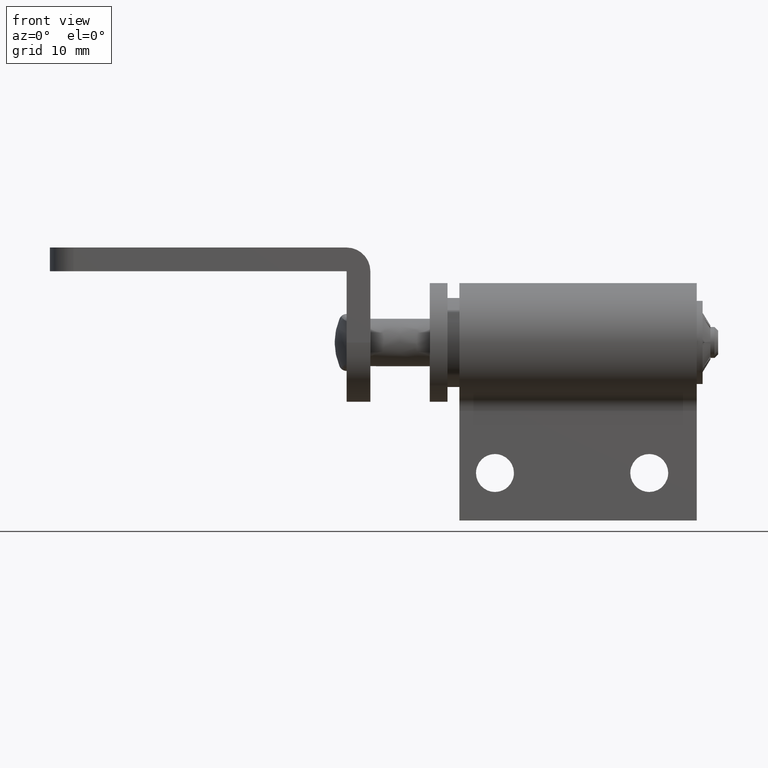
[diagram: clean part render]
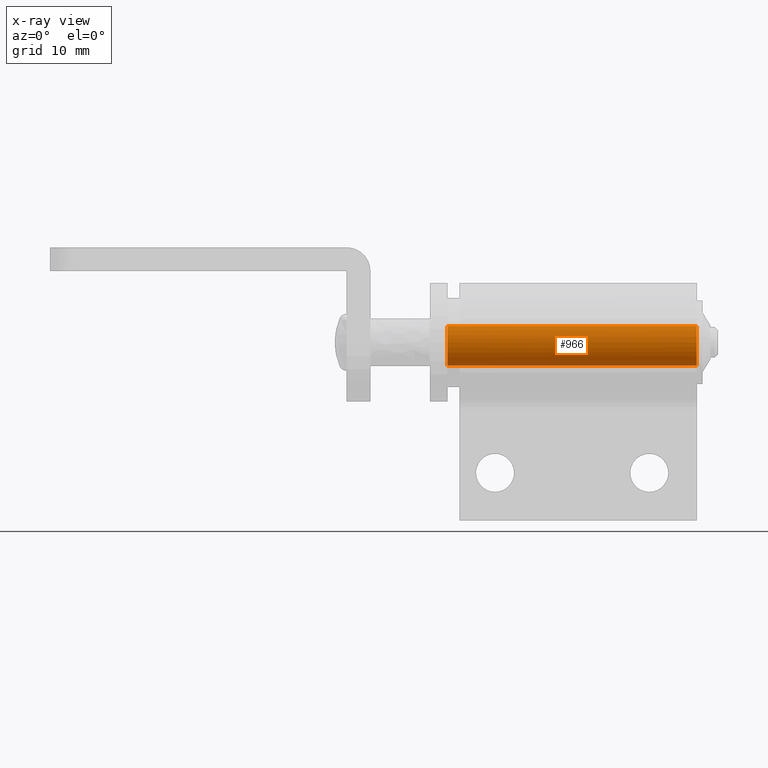
[diagram: x-ray — body ghosted, one internal face saturated and labeled with its STEP entity id]
A machine part, front view, then the same camera in x-ray: the body is ghosted and one INTERNAL B-rep face — a face not visible from any outside direction — is saturated and labeled: STEP entity #966.
In plain terms, the highlighted face is a freeform B-spline surface patch.
Its self-contained STEP definition (entity closure, byte-faithful):
#806=CARTESIAN_POINT('',(27.499999999999609,-1.366773203733618,1.390838492547572));
#807=VERTEX_POINT('',#806);
#819=CARTESIAN_POINT('',(27.500000000000000,-1.949999999999867,0.000000720926394));
#820=VERTEX_POINT('',#819);
#821=CARTESIAN_POINT('',(27.500000000000000,-1.949999999999867,0.000000720926394));
#822=CARTESIAN_POINT('',(27.499999999999979,-1.950047994614657,0.169378875432823));
#823=CARTESIAN_POINT('',(27.499999999999812,-1.914030310972787,0.443563347467407));
#824=CARTESIAN_POINT('',(27.499999999999901,-1.740774460514378,0.931609000888460));
#825=CARTESIAN_POINT('',(27.499999999999570,-1.539540575149388,1.221377174965465));
#826=CARTESIAN_POINT('',(27.499999999999609,-1.366773203733618,1.390838492547572));
#827=B_SPLINE_CURVE_WITH_KNOTS('',3,(#821,#822,#823,#824,#825,#826),.UNSPECIFIED.,.F.,.U.,(4,1,1,4),(0.000000018511957,0.508121024925905,0.822664070868478,1.548552646110352),.UNSPECIFIED.);
#828=EDGE_CURVE('',#820,#807,#827,.T.);
#830=CARTESIAN_POINT('',(27.500000000000000,0.0,-1.950000000000000));
#831=VERTEX_POINT('',#830);
#832=CARTESIAN_POINT('',(27.500000000000000,0.0,-1.950000000000000));
#833=CARTESIAN_POINT('',(27.500000000000000,-0.119647126584204,-1.950010584561388));
#834=CARTESIAN_POINT('',(27.499999999999972,-0.374901890827367,-1.926442330407408));
#835=CARTESIAN_POINT('',(27.500000000000000,-0.690146637806017,-1.832927827841451));
#836=CARTESIAN_POINT('',(27.499999999999989,-0.999790541831232,-1.684139218013389));
#837=CARTESIAN_POINT('',(27.500000000000011,-1.296143919473710,-1.478164466958066));
#838=CARTESIAN_POINT('',(27.500000000000011,-1.578485222945910,-1.170452195569402));
#839=CARTESIAN_POINT('',(27.499999999999890,-1.796425074408128,-0.796503251311058));
#840=CARTESIAN_POINT('',(27.500000000000352,-1.922518959187662,-0.406813067960667));
#841=CARTESIAN_POINT('',(27.499999999999691,-1.950008328879660,-0.127624436273055));
#842=CARTESIAN_POINT('',(27.500000000000000,-1.949999999999867,0.000000720926394));
#843=B_SPLINE_CURVE_WITH_KNOTS('',3,(#832,#833,#834,#835,#836,#837,#838,#839,#840,#841,#842),.UNSPECIFIED.,.F.,.U.,(4,1,1,1,1,1,1,1,4),(0.000000068411732,0.358943663866571,0.765768301621269,0.981143381336795,1.387972693016732,1.842616439815194,2.225511751286716,2.680192115271657,3.063072462941079),.UNSPECIFIED.);
#844=EDGE_CURVE('',#831,#820,#843,.T.);
#846=CARTESIAN_POINT('',(27.499999999999609,1.366773203733612,-1.390838492547567));
#847=VERTEX_POINT('',#846);
#848=CARTESIAN_POINT('',(27.499999999999609,1.366773203733612,-1.390838492547567));
#849=CARTESIAN_POINT('',(27.499999999999648,1.237408314364700,-1.518051135449795));
#850=CARTESIAN_POINT('',(27.499999999999769,1.006869633167816,-1.688533801159638));
#851=CARTESIAN_POINT('',(27.499999999999769,0.544185424199011,-1.894425751406475));
#852=CARTESIAN_POINT('',(27.500000000000060,0.220897345878220,-1.950169475384064));
#853=CARTESIAN_POINT('',(27.500000000000000,0.0,-1.950000000000000));
#854=B_SPLINE_CURVE_WITH_KNOTS('',3,(#848,#849,#850,#851,#852,#853),.UNSPECIFIED.,.F.,.U.,(4,1,1,4),(0.000000016567315,0.544281440796522,0.851910658614900,1.514518838185107),.UNSPECIFIED.);
#855=EDGE_CURVE('',#847,#831,#854,.T.);
#893=CARTESIAN_POINT('',(28.024999999999999,1.366773065384709,-1.390838375850654));
#894=CARTESIAN_POINT('',(28.025000000000006,-0.024065310465945,-2.757611441235363));
#895=CARTESIAN_POINT('',(28.024999999999999,-1.390838375850654,-1.366773065384709));
#896=CARTESIAN_POINT('',(28.025000000000006,-2.757611441235363,0.024065310465945));
#897=CARTESIAN_POINT('',(28.024999999999999,-1.366773065384709,1.390838375850654));
#898=CARTESIAN_POINT('',(5.961874999999999,1.366773065384709,-1.390838375850654));
#899=CARTESIAN_POINT('',(5.961874999999998,-0.024065310465945,-2.757611441235363));
#900=CARTESIAN_POINT('',(5.961874999999999,-1.390838375850654,-1.366773065384709));
#901=CARTESIAN_POINT('',(5.961874999999998,-2.757611441235363,0.024065310465945));
#902=CARTESIAN_POINT('',(5.961874999999999,-1.366773065384709,1.390838375850654));
#910=(BOUNDED_SURFACE()B_SPLINE_SURFACE(2,1,((#893,#898),(#894,#899),(#895,#900),(#896,#901),(#897,#902)),.UNSPECIFIED.,.F.,.F.,.U.)B_SPLINE_SURFACE_WITH_KNOTS((3,2,3),(2,2),(0.0,3.230865786510141,6.461731573020281),(0.0,22.063125000000010),.UNSPECIFIED.)GEOMETRIC_REPRESENTATION_ITEM()RATIONAL_B_SPLINE_SURFACE(((1.0,1.0),(0.707106781186548,0.707106781186548),(1.0,1.0),(0.707106781186548,0.707106781186548),(1.0,1.0)))REPRESENTATION_ITEM('')SURFACE());
#911=ORIENTED_EDGE('',*,*,#855,.T.);
#912=ORIENTED_EDGE('',*,*,#844,.T.);
#913=ORIENTED_EDGE('',*,*,#828,.T.);
#914=CARTESIAN_POINT('',(6.500000000000001,-1.366772951249389,1.390838235359075));
#915=VERTEX_POINT('',#914);
#916=CARTESIAN_POINT('',(27.499999999999609,-1.366773203733618,1.390838492547572));
#917=CARTESIAN_POINT('',(6.500000000000001,-1.366772951249389,1.390838235359075));
#918=QUASI_UNIFORM_CURVE('',1,(#916,#917),.UNSPECIFIED.,.F.,.U.);
#919=EDGE_CURVE('',#807,#915,#918,.T.);
#920=ORIENTED_EDGE('',*,*,#919,.T.);
#921=CARTESIAN_POINT('',(6.500000000000000,-1.949999999999867,-9.947600E-014));
#922=VERTEX_POINT('',#921);
#923=CARTESIAN_POINT('',(6.500000000000001,-1.366772951249389,1.390838235359075));
#924=CARTESIAN_POINT('',(6.500000000000033,-1.527986045313632,1.232646017051011));
#925=CARTESIAN_POINT('',(6.499999999999963,-1.708632308602377,0.979397046472969));
#926=CARTESIAN_POINT('',(6.500000000000037,-1.902702568259152,0.499984062955947));
#927=CARTESIAN_POINT('',(6.500000000000004,-1.950122815148748,0.209720513830726));
#928=CARTESIAN_POINT('',(6.500000000000000,-1.949999999999867,-9.947600E-014));
#929=B_SPLINE_CURVE_WITH_KNOTS('',3,(#923,#924,#925,#926,#927,#928),.UNSPECIFIED.,.F.,.U.,(4,1,1,4),(0.000000018511980,0.677498675301140,0.919446579712146,1.548553223763860),.UNSPECIFIED.);
#930=EDGE_CURVE('',#915,#922,#929,.T.);
#931=ORIENTED_EDGE('',*,*,#930,.T.);
#932=CARTESIAN_POINT('',(6.500000000000000,0.0,-1.950000000000000));
#933=VERTEX_POINT('',#932);
#934=CARTESIAN_POINT('',(6.500000000000000,-1.949999999999867,-9.947600E-014));
#935=CARTESIAN_POINT('',(6.500000000000001,-1.950010698492792,-0.119647562924277));
#936=CARTESIAN_POINT('',(6.500000000000025,-1.926441280377720,-0.374899358385481));
#937=CARTESIAN_POINT('',(6.499999999999949,-1.816968140854073,-0.743976512641086));
#938=CARTESIAN_POINT('',(6.500000000000057,-1.624270216081290,-1.104491355179282));
#939=CARTESIAN_POINT('',(6.500000000000000,-1.376248228726845,-1.399238198024023));
#940=CARTESIAN_POINT('',(6.499999999999974,-1.063714179320260,-1.649388239448449));
#941=CARTESIAN_POINT('',(6.500000000000010,-0.764514185769376,-1.804613268404231));
#942=CARTESIAN_POINT('',(6.499999999999991,-0.398814783672400,-1.920465878756980));
#943=CARTESIAN_POINT('',(6.500000000000086,-0.159535707933579,-1.950036683635150));
#944=CARTESIAN_POINT('',(6.500000000000000,0.0,-1.950000000000000));
#945=B_SPLINE_CURVE_WITH_KNOTS('',3,(#934,#935,#936,#937,#938,#939,#940,#941,#942,#943,#944),.UNSPECIFIED.,.F.,.U.,(4,1,1,1,1,1,1,1,4),(0.000000068535145,0.358943616314497,0.765768200147896,1.148658708540306,1.579386006637402,1.914416363729315,2.345165294625753,2.584474675373538,3.063072056612399),.UNSPECIFIED.);
#946=EDGE_CURVE('',#922,#933,#945,.T.);
#947=ORIENTED_EDGE('',*,*,#946,.T.);
#948=CARTESIAN_POINT('',(6.500000000000000,1.366772951249383,-1.390838235359070));
#949=VERTEX_POINT('',#948);
#950=CARTESIAN_POINT('',(6.500000000000000,0.0,-1.950000000000000));
#951=CARTESIAN_POINT('',(6.500000000000001,0.236678044655986,-1.950214392919645));
#952=CARTESIAN_POINT('',(6.499999999999989,0.615146327355301,-1.880183257451173));
#953=CARTESIAN_POINT('',(6.500000000000034,1.067160915573468,-1.648643126555870));
#954=CARTESIAN_POINT('',(6.499999999999988,1.276763135889848,-1.479309532849410));
#955=CARTESIAN_POINT('',(6.500000000000000,1.366772951249383,-1.390838235359070));
#956=B_SPLINE_CURVE_WITH_KNOTS('',3,(#950,#951,#952,#953,#954,#955),.UNSPECIFIED.,.F.,.U.,(4,1,1,4),(0.000000016567440,0.709934880784246,1.135889027946050,1.514518698406115),.UNSPECIFIED.);
#957=EDGE_CURVE('',#933,#949,#956,.T.);
#958=ORIENTED_EDGE('',*,*,#957,.T.);
#959=CARTESIAN_POINT('',(27.499999999999609,1.366773203733612,-1.390838492547567));
#960=CARTESIAN_POINT('',(6.500000000000000,1.366772951249383,-1.390838235359070));
#961=QUASI_UNIFORM_CURVE('',1,(#959,#960),.UNSPECIFIED.,.F.,.U.);
#962=EDGE_CURVE('',#847,#949,#961,.T.);
#963=ORIENTED_EDGE('',*,*,#962,.F.);
#964=EDGE_LOOP('',(#911,#912,#913,#920,#931,#947,#958,#963));
#965=FACE_OUTER_BOUND('',#964,.T.);
#966=ADVANCED_FACE('',(#965),#910,.T.);